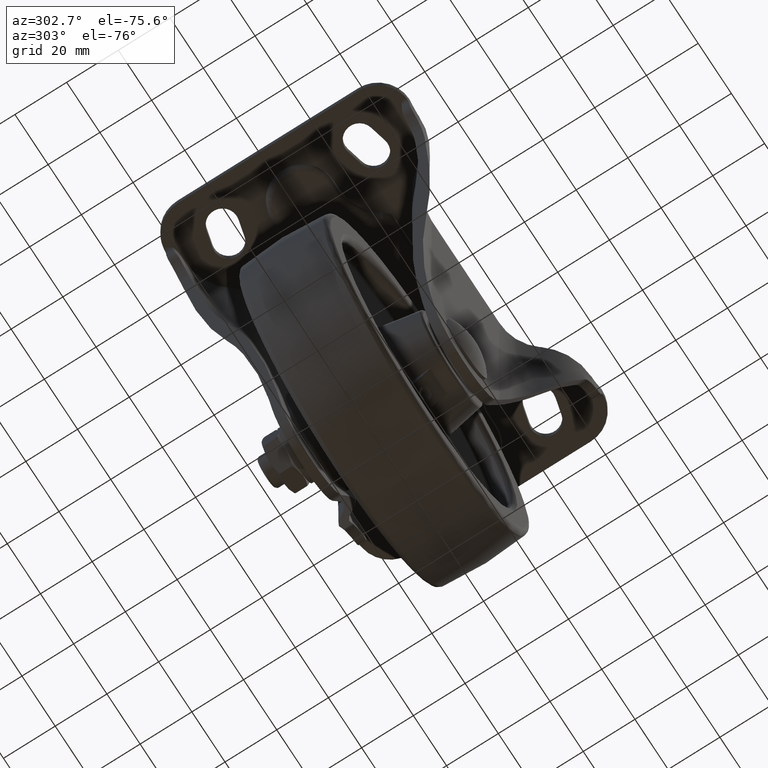
[diagram: clean part render]
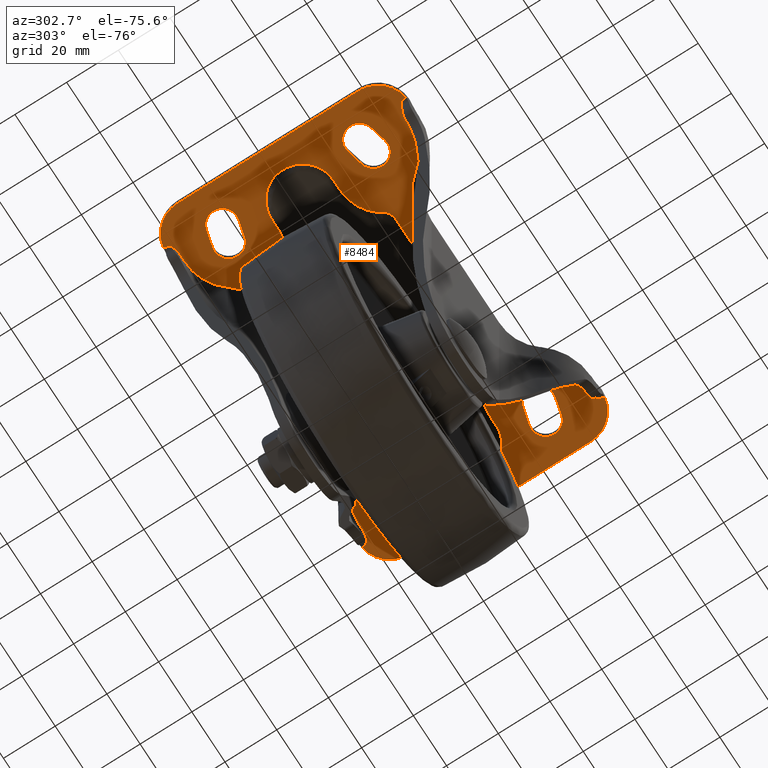
[diagram: same view with one face highlighted and labeled with its STEP entity id]
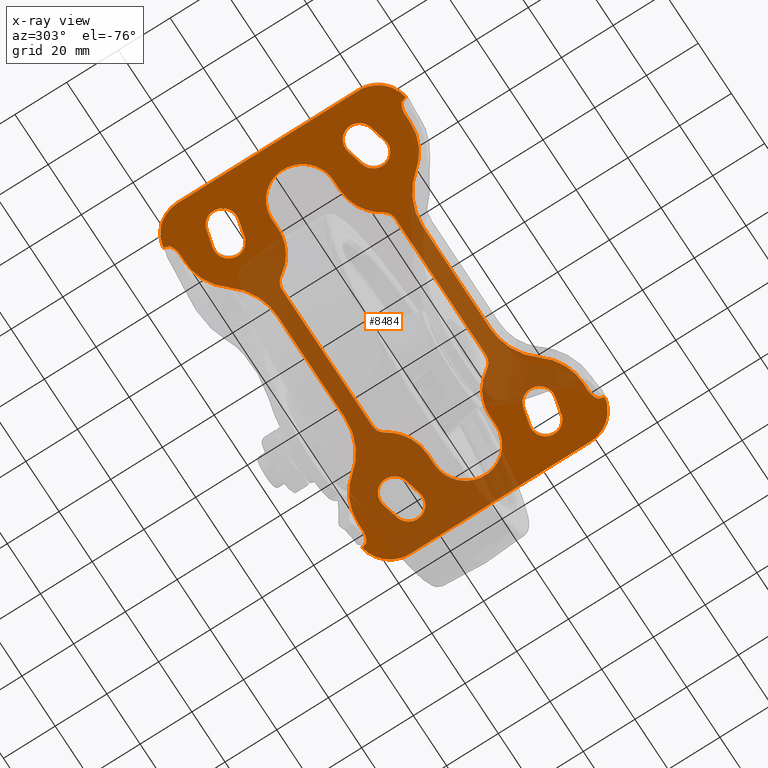
[diagram: x-ray of the same camera — body ghosted, the highlighted face saturated]
A machine part, auxiliary view. The second image highlights one B-rep face of the part: STEP entity #8484.
The next image is the same camera in x-ray: the body ghosted, the highlighted face saturated — about 44% of this face is hidden behind the body in this view.
In plain terms, the highlighted face is a freeform B-spline surface patch.
Its self-contained STEP definition (entity closure, byte-faithful):
#5304=CARTESIAN_POINT('',(-27.111454000000201,-22.0,102.0));
#5305=VERTEX_POINT('',#5304);
#5318=CARTESIAN_POINT('',(27.111453999999799,-22.0,102.0));
#5319=VERTEX_POINT('',#5318);
#5331=CARTESIAN_POINT('',(27.111453999999799,-22.0,102.0));
#5332=CARTESIAN_POINT('',(-27.111454000000201,-22.0,102.0));
#5333=QUASI_UNIFORM_CURVE('',1,(#5331,#5332),.UNSPECIFIED.,.F.,.U.);
#5334=EDGE_CURVE('',#5319,#5305,#5333,.T.);
#5356=CARTESIAN_POINT('',(31.370629280001449,-19.619047619047699,102.0));
#5357=VERTEX_POINT('',#5356);
#5369=CARTESIAN_POINT('',(31.370629280001449,-19.619047619047699,102.0));
#5370=CARTESIAN_POINT('',(29.906537777500791,-21.999998982590345,102.0));
#5371=CARTESIAN_POINT('',(27.111453999999799,-21.999999999999670,102.0));
#5379=(BOUNDED_CURVE()B_SPLINE_CURVE(2,(#5369,#5370,#5371),.UNSPECIFIED.,.F.,.U.)CURVE()GEOMETRIC_REPRESENTATION_ITEM()QUASI_UNIFORM_CURVE()RATIONAL_B_SPLINE_CURVE((1.0,0.872871649750764,1.0))REPRESENTATION_ITEM(''));
#5380=EDGE_CURVE('',#5357,#5319,#5379,.T.);
#5404=CARTESIAN_POINT('',(-31.370629280001399,-19.619047619047699,102.0));
#5405=VERTEX_POINT('',#5404);
#5419=CARTESIAN_POINT('',(-27.111454000000201,-22.0,102.0));
#5420=CARTESIAN_POINT('',(-29.906537777500880,-21.999998982590071,102.0));
#5421=CARTESIAN_POINT('',(-31.370629280001371,-19.619047619047681,102.0));
#5429=(BOUNDED_CURVE()B_SPLINE_CURVE(2,(#5419,#5420,#5421),.UNSPECIFIED.,.F.,.U.)CURVE()GEOMETRIC_REPRESENTATION_ITEM()QUASI_UNIFORM_CURVE()RATIONAL_B_SPLINE_CURVE((1.0,0.872871649750787,1.0))REPRESENTATION_ITEM(''));
#5430=EDGE_CURVE('',#5305,#5405,#5429,.T.);
#5452=CARTESIAN_POINT('',(44.999985667651003,-12.000000000003499,102.0));
#5453=VERTEX_POINT('',#5452);
#5464=CARTESIAN_POINT('',(31.370629280001360,-19.619047619047649,102.0));
#5465=CARTESIAN_POINT('',(36.055720538256566,-12.000005775957691,102.0));
#5466=CARTESIAN_POINT('',(44.999985667651003,-12.000000000003340,102.0));
#5474=(BOUNDED_CURVE()B_SPLINE_CURVE(2,(#5464,#5465,#5466),.UNSPECIFIED.,.F.,.U.)CURVE()GEOMETRIC_REPRESENTATION_ITEM()QUASI_UNIFORM_CURVE()RATIONAL_B_SPLINE_CURVE((1.0,0.872871718496115,1.0))REPRESENTATION_ITEM(''));
#5475=EDGE_CURVE('',#5357,#5453,#5474,.T.);
#5499=CARTESIAN_POINT('',(-44.999984999999747,-12.000000000000121,102.0));
#5500=VERTEX_POINT('',#5499);
#5514=CARTESIAN_POINT('',(-44.999984999999747,-12.000000000000121,102.0));
#5515=CARTESIAN_POINT('',(-36.055720308751518,-12.000006149185948,102.0));
#5516=CARTESIAN_POINT('',(-31.370629280001349,-19.619047619047659,102.0));
#5524=(BOUNDED_CURVE()B_SPLINE_CURVE(2,(#5514,#5515,#5516),.UNSPECIFIED.,.F.,.U.)CURVE()GEOMETRIC_REPRESENTATION_ITEM()QUASI_UNIFORM_CURVE()RATIONAL_B_SPLINE_CURVE((1.0,0.872871728676748,1.0))REPRESENTATION_ITEM(''));
#5525=EDGE_CURVE('',#5500,#5405,#5524,.T.);
#5544=CARTESIAN_POINT('',(48.999989999999997,-12.000000000000220,102.0));
#5545=VERTEX_POINT('',#5544);
#5557=CARTESIAN_POINT('',(48.999989999999997,-12.000000000000220,102.0));
#5558=CARTESIAN_POINT('',(44.999985667651003,-12.000000000003499,102.0));
#5559=QUASI_UNIFORM_CURVE('',1,(#5557,#5558),.UNSPECIFIED.,.F.,.U.);
#5560=EDGE_CURVE('',#5545,#5453,#5559,.T.);
#5581=CARTESIAN_POINT('',(-48.999988250738198,-11.999999999997380,102.0));
#5582=VERTEX_POINT('',#5581);
#5596=CARTESIAN_POINT('',(-44.999984999999747,-12.000000000000121,102.0));
#5597=CARTESIAN_POINT('',(-48.999988250738198,-11.999999999997380,102.0));
#5598=QUASI_UNIFORM_CURVE('',1,(#5596,#5597),.UNSPECIFIED.,.F.,.U.);
#5599=EDGE_CURVE('',#5500,#5582,#5598,.T.);
#5627=CARTESIAN_POINT('',(48.999999769911298,11.999999999999419,102.0));
#5628=VERTEX_POINT('',#5627);
#5641=CARTESIAN_POINT('',(48.999999769911298,11.999999999999419,102.0));
#5642=CARTESIAN_POINT('',(49.883574819334832,12.000149165317810,102.000000000000300));
#5643=CARTESIAN_POINT('',(51.552480042536907,11.814852113981679,101.999999999999600));
#5644=CARTESIAN_POINT('',(53.706869997564191,11.103101605465641,102.000000000000200));
#5645=CARTESIAN_POINT('',(55.573476125657152,10.105386122975840,101.999999999999600));
#5646=CARTESIAN_POINT('',(56.940125322865967,9.052236760049311,102.000000000000100));
#5647=CARTESIAN_POINT('',(58.210072261224333,7.750718180392997,101.999999999999800));
#5648=CARTESIAN_POINT('',(59.207951833685861,6.405250228899099,102.000000000000200));
#5649=CARTESIAN_POINT('',(60.069274298059653,4.745033772532293,101.999999999999800));
#5650=CARTESIAN_POINT('',(60.741930499202972,2.790239279855541,102.000000000000200));
#5651=CARTESIAN_POINT('',(61.068005975950008,0.591875118065421,102.0));
#5652=CARTESIAN_POINT('',(60.931985396890063,-1.869228699963068,101.999999999999010));
#5653=CARTESIAN_POINT('',(60.415883891061661,-3.876847131780324,102.000000000000500));
#5654=CARTESIAN_POINT('',(59.539001202123828,-5.855138138496876,102.0));
#5655=CARTESIAN_POINT('',(58.289379356106899,-7.750605158771084,102.0));
#5656=CARTESIAN_POINT('',(56.545775956018922,-9.431159014365122,102.0));
#5657=CARTESIAN_POINT('',(54.597901050020532,-10.681218947288521,102.000000000000100));
#5658=CARTESIAN_POINT('',(52.190353822945362,-11.696122656662350,101.999999999999500));
#5659=CARTESIAN_POINT('',(50.227240476759647,-12.000566316251090,102.000000000001410));
#5660=CARTESIAN_POINT('',(48.999989999999997,-12.000000000000220,102.0));
#5661=B_SPLINE_CURVE_WITH_KNOTS('',3,(#5641,#5642,#5643,#5644,#5645,#5646,#5647,#5648,#5649,#5650,#5651,#5652,#5653,#5654,#5655,#5656,#5657,#5658,#5659,#5660),.UNSPECIFIED.,.F.,.U.,(4,1,1,1,1,1,1,1,1,1,1,1,1,1,1,1,1,4),(0.000000325266527,2.650707487898934,5.006928073430288,6.774106226370876,8.983051368582942,10.161210523950420,12.222845440064070,13.989979135645640,15.757103438723600,18.407879628085698,20.616858584811411,23.120342780961820,24.592949202298900,27.096386629225961,29.894401199036221,31.808829275852101,34.017798531802327,37.699350619291209),.UNSPECIFIED.);
#5662=EDGE_CURVE('',#5628,#5545,#5661,.T.);
#5692=CARTESIAN_POINT('',(-48.999989999999997,12.0,102.0));
#5693=VERTEX_POINT('',#5692);
#5707=CARTESIAN_POINT('',(-48.999988250738198,-11.999999999997380,102.0));
#5708=CARTESIAN_POINT('',(-49.883564557680103,-12.000150780457080,101.999999999999900));
#5709=CARTESIAN_POINT('',(-51.552466955676813,-11.814849912727819,102.000000000000200));
#5710=CARTESIAN_POINT('',(-53.566357100548913,-11.149526348837281,101.999999999999700));
#5711=CARTESIAN_POINT('',(-55.273660397393563,-10.276946782853150,102.000000000000400));
#5712=CARTESIAN_POINT('',(-56.683503369582958,-9.283994640305826,102.000000000000400));
#5713=CARTESIAN_POINT('',(-58.233671296622951,-7.771604723765196,102.000000000000300));
#5714=CARTESIAN_POINT('',(-59.427968487944163,-6.075733322273231,101.999999999999300));
#5715=CARTESIAN_POINT('',(-60.391350295838777,-3.972477380922791,102.000000000001510));
#5716=CARTESIAN_POINT('',(-60.858205202391019,-2.156032826347218,101.999999999998000));
#5717=CARTESIAN_POINT('',(-61.043430448618679,-0.148861077360590,102.000000000002300));
#5718=CARTESIAN_POINT('',(-60.940069865936323,1.721543940778727,102.000000000000700));
#5719=CARTESIAN_POINT('',(-60.439123597907312,3.830729009009837,101.999999999998910));
#5720=CARTESIAN_POINT('',(-59.473984413559812,6.045022643404922,102.000000000000200));
#5721=CARTESIAN_POINT('',(-57.938538906523078,8.169520158163154,102.000000000000200));
#5722=CARTESIAN_POINT('',(-56.105952438831778,9.749978827929841,101.999999999999200));
#5723=CARTESIAN_POINT('',(-54.030591793021749,10.976785142130380,102.000000000000400));
#5724=CARTESIAN_POINT('',(-51.748875536431463,11.793205537842971,102.000000000000100));
#5725=CARTESIAN_POINT('',(-49.883544077709800,12.000126623289511,101.999999999999300));
#5726=CARTESIAN_POINT('',(-48.999989999999997,12.0,102.0));
#5727=B_SPLINE_CURVE_WITH_KNOTS('',3,(#5707,#5708,#5709,#5710,#5711,#5712,#5713,#5714,#5715,#5716,#5717,#5718,#5719,#5720,#5721,#5722,#5723,#5724,#5725,#5726),.UNSPECIFIED.,.F.,.U.,(4,1,1,1,1,1,1,1,1,1,1,1,1,1,1,1,1,4),(0.000000325303574,2.650708297834292,5.006929603364505,6.332317481389559,8.394021026334414,10.161213628860690,12.811812841451509,14.579012661927200,17.082497623122880,18.407885252799769,20.616864884515060,22.678579306204860,24.887549666160481,27.832713822917409,30.483464882731560,32.103373078457167,35.048676697600193,37.699362138680847),.UNSPECIFIED.);
#5728=EDGE_CURVE('',#5582,#5693,#5727,.T.);
#5747=CARTESIAN_POINT('',(44.999984999999803,12.000000000000220,102.0));
#5748=VERTEX_POINT('',#5747);
#5760=CARTESIAN_POINT('',(44.999984999999803,12.000000000000220,102.0));
#5761=CARTESIAN_POINT('',(48.999999769911298,11.999999999999419,102.0));
#5762=QUASI_UNIFORM_CURVE('',1,(#5760,#5761),.UNSPECIFIED.,.F.,.U.);
#5763=EDGE_CURVE('',#5748,#5628,#5762,.T.);
#5784=CARTESIAN_POINT('',(-44.999985667650947,12.000000000003419,102.0));
#5785=VERTEX_POINT('',#5784);
#5799=CARTESIAN_POINT('',(-48.999989999999997,12.0,102.0));
#5800=CARTESIAN_POINT('',(-44.999985667650947,12.000000000003419,102.0));
#5801=QUASI_UNIFORM_CURVE('',1,(#5799,#5800),.UNSPECIFIED.,.F.,.U.);
#5802=EDGE_CURVE('',#5693,#5785,#5801,.T.);
#5824=CARTESIAN_POINT('',(31.370629280001449,19.619047619047699,102.0));
#5825=VERTEX_POINT('',#5824);
#5837=CARTESIAN_POINT('',(44.999984999999803,12.000000000000220,102.0));
#5838=CARTESIAN_POINT('',(36.055720308751560,12.000006149185959,102.0));
#5839=CARTESIAN_POINT('',(31.370629280001410,19.619047619047670,102.0));
#5847=(BOUNDED_CURVE()B_SPLINE_CURVE(2,(#5837,#5838,#5839),.UNSPECIFIED.,.F.,.U.)CURVE()GEOMETRIC_REPRESENTATION_ITEM()QUASI_UNIFORM_CURVE()RATIONAL_B_SPLINE_CURVE((1.0,0.872871728676748,1.0))REPRESENTATION_ITEM(''));
#5848=EDGE_CURVE('',#5748,#5825,#5847,.T.);
#5872=CARTESIAN_POINT('',(-31.370629280001399,19.619047619047699,102.0));
#5873=VERTEX_POINT('',#5872);
#5887=CARTESIAN_POINT('',(-31.370629280001349,19.619047619047659,102.0));
#5888=CARTESIAN_POINT('',(-36.055720538256523,12.000005775957726,102.0));
#5889=CARTESIAN_POINT('',(-44.999985667650947,12.000000000003340,102.0));
#5897=(BOUNDED_CURVE()B_SPLINE_CURVE(2,(#5887,#5888,#5889),.UNSPECIFIED.,.F.,.U.)CURVE()GEOMETRIC_REPRESENTATION_ITEM()QUASI_UNIFORM_CURVE()RATIONAL_B_SPLINE_CURVE((1.0,0.872871718496115,1.0))REPRESENTATION_ITEM(''));
#5898=EDGE_CURVE('',#5873,#5785,#5897,.T.);
#5920=CARTESIAN_POINT('',(27.111452180001901,22.0,102.0));
#5921=VERTEX_POINT('',#5920);
#5933=CARTESIAN_POINT('',(27.111452180001901,22.0,102.0));
#5934=CARTESIAN_POINT('',(29.906537151876570,22.000000000000007,102.0));
#5935=CARTESIAN_POINT('',(31.370629280001449,19.619047619047699,102.0));
#5943=(BOUNDED_CURVE()B_SPLINE_CURVE(2,(#5933,#5934,#5935),.UNSPECIFIED.,.F.,.U.)CURVE()GEOMETRIC_REPRESENTATION_ITEM()QUASI_UNIFORM_CURVE()RATIONAL_B_SPLINE_CURVE((1.0,0.872871560943974,1.0))REPRESENTATION_ITEM(''));
#5944=EDGE_CURVE('',#5921,#5825,#5943,.T.);
#5968=CARTESIAN_POINT('',(-27.111454000000201,22.0,102.0));
#5969=VERTEX_POINT('',#5968);
#5983=CARTESIAN_POINT('',(-31.370629280001371,19.619047619047670,102.0));
#5984=CARTESIAN_POINT('',(-29.906537777500883,21.999998982590075,102.0));
#5985=CARTESIAN_POINT('',(-27.111454000000201,21.999999999999670,102.0));
#5993=(BOUNDED_CURVE()B_SPLINE_CURVE(2,(#5983,#5984,#5985),.UNSPECIFIED.,.F.,.U.)CURVE()GEOMETRIC_REPRESENTATION_ITEM()QUASI_UNIFORM_CURVE()RATIONAL_B_SPLINE_CURVE((1.0,0.872871649750787,1.0))REPRESENTATION_ITEM(''));
#5994=EDGE_CURVE('',#5873,#5969,#5993,.T.);
#6016=CARTESIAN_POINT('',(-27.111454000000201,22.0,102.0));
#6017=CARTESIAN_POINT('',(27.111452180001901,22.0,102.0));
#6018=QUASI_UNIFORM_CURVE('',1,(#6016,#6017),.UNSPECIFIED.,.F.,.U.);
#6019=EDGE_CURVE('',#5969,#5921,#6018,.T.);
#6923=CARTESIAN_POINT('',(-59.222653478872203,-44.751545144357443,102.0));
#6924=VERTEX_POINT('',#6923);
#6950=CARTESIAN_POINT('',(-54.952017975717887,-43.500000000000000,102.0));
#6951=VERTEX_POINT('',#6950);
#6952=CARTESIAN_POINT('',(-54.952017975717887,-43.500000000000000,102.0));
#6953=CARTESIAN_POINT('',(-57.272807229094042,-43.492889943871475,102.0));
#6954=CARTESIAN_POINT('',(-59.222653478872182,-44.751545144357472,102.0));
#6962=(BOUNDED_CURVE()B_SPLINE_CURVE(2,(#6952,#6953,#6954),.UNSPECIFIED.,.F.,.U.)CURVE()GEOMETRIC_REPRESENTATION_ITEM()QUASI_UNIFORM_CURVE()RATIONAL_B_SPLINE_CURVE((1.0,0.958774151870259,1.0))REPRESENTATION_ITEM(''));
#6963=EDGE_CURVE('',#6951,#6924,#6962,.T.);
#7038=CARTESIAN_POINT('',(54.952017975717887,-43.500000000000000,102.0));
#7039=VERTEX_POINT('',#7038);
#7045=CARTESIAN_POINT('',(59.222653478872203,-44.751545144357443,102.0));
#7046=VERTEX_POINT('',#7045);
#7047=CARTESIAN_POINT('',(59.222653478872182,-44.751545144357472,102.0));
#7048=CARTESIAN_POINT('',(57.272807229094042,-43.492889943871475,102.0));
#7049=CARTESIAN_POINT('',(54.952017975717887,-43.500000000000298,102.0));
#7057=(BOUNDED_CURVE()B_SPLINE_CURVE(2,(#7047,#7048,#7049),.UNSPECIFIED.,.F.,.U.)CURVE()GEOMETRIC_REPRESENTATION_ITEM()QUASI_UNIFORM_CURVE()RATIONAL_B_SPLINE_CURVE((1.0,0.958774151870259,1.0))REPRESENTATION_ITEM(''));
#7058=EDGE_CURVE('',#7046,#7039,#7057,.T.);
#7108=CARTESIAN_POINT('',(52.0,-43.500000000000000,102.0));
#7109=VERTEX_POINT('',#7108);
#7115=CARTESIAN_POINT('',(54.952017975717887,-43.500000000000000,102.0));
#7116=CARTESIAN_POINT('',(52.0,-43.500000000000000,102.0));
#7117=QUASI_UNIFORM_CURVE('',1,(#7115,#7116),.UNSPECIFIED.,.F.,.U.);
#7118=EDGE_CURVE('',#7039,#7109,#7117,.T.);
#7173=CARTESIAN_POINT('',(37.376290127769799,-36.331249999999997,102.0));
#7174=VERTEX_POINT('',#7173);
#7180=CARTESIAN_POINT('',(37.376290127769799,-36.331249999999997,102.0));
#7181=CARTESIAN_POINT('',(42.931032348929442,-43.500000968326354,102.0));
#7182=CARTESIAN_POINT('',(52.0,-43.500000000000000,102.0));
#7190=(BOUNDED_CURVE()B_SPLINE_CURVE(2,(#7180,#7181,#7182),.UNSPECIFIED.,.F.,.U.)CURVE()GEOMETRIC_REPRESENTATION_ITEM()QUASI_UNIFORM_CURVE()RATIONAL_B_SPLINE_CURVE((1.0,0.897914220656982,1.0))REPRESENTATION_ITEM(''));
#7191=EDGE_CURVE('',#7174,#7109,#7190,.T.);
#7225=CARTESIAN_POINT('',(20.381172492475301,-28.0,102.0));
#7226=VERTEX_POINT('',#7225);
#7232=CARTESIAN_POINT('',(37.376290127769842,-36.331249999999983,102.0));
#7233=CARTESIAN_POINT('',(30.920780328316866,-28.000000000000004,102.0));
#7234=CARTESIAN_POINT('',(20.381172492475301,-28.0,102.0));
#7242=(BOUNDED_CURVE()B_SPLINE_CURVE(2,(#7232,#7233,#7234),.UNSPECIFIED.,.F.,.U.)CURVE()GEOMETRIC_REPRESENTATION_ITEM()QUASI_UNIFORM_CURVE()RATIONAL_B_SPLINE_CURVE((1.0,0.897914249803399,1.0))REPRESENTATION_ITEM(''));
#7243=EDGE_CURVE('',#7174,#7226,#7242,.T.);
#7291=CARTESIAN_POINT('',(-20.381176492475301,-28.0,102.0));
#7292=VERTEX_POINT('',#7291);
#7298=CARTESIAN_POINT('',(20.381172492475301,-28.0,102.0));
#7299=CARTESIAN_POINT('',(-20.381176492475301,-28.0,102.0));
#7300=QUASI_UNIFORM_CURVE('',1,(#7298,#7299),.UNSPECIFIED.,.F.,.U.);
#7301=EDGE_CURVE('',#7226,#7292,#7300,.T.);
#7342=CARTESIAN_POINT('',(-37.376294127769853,-36.331249999999997,102.0));
#7343=VERTEX_POINT('',#7342);
#7349=CARTESIAN_POINT('',(-20.381176492475301,-28.0,102.0));
#7350=CARTESIAN_POINT('',(-30.920784328316884,-28.000000000000007,102.0));
#7351=CARTESIAN_POINT('',(-37.376294127769853,-36.331249999999997,102.0));
#7359=(BOUNDED_CURVE()B_SPLINE_CURVE(2,(#7349,#7350,#7351),.UNSPECIFIED.,.F.,.U.)CURVE()GEOMETRIC_REPRESENTATION_ITEM()QUASI_UNIFORM_CURVE()RATIONAL_B_SPLINE_CURVE((1.0,0.897914249803399,1.0))REPRESENTATION_ITEM(''));
#7360=EDGE_CURVE('',#7292,#7343,#7359,.T.);
#7415=CARTESIAN_POINT('',(-52.0,-43.500000000000000,102.0));
#7416=VERTEX_POINT('',#7415);
#7422=CARTESIAN_POINT('',(-52.0,-43.500000000000000,102.0));
#7423=CARTESIAN_POINT('',(-42.931035117996792,-43.500000000000007,102.0));
#7424=CARTESIAN_POINT('',(-37.376294127769818,-36.331250000000033,102.0));
#7432=(BOUNDED_CURVE()B_SPLINE_CURVE(2,(#7422,#7423,#7424),.UNSPECIFIED.,.F.,.U.)CURVE()GEOMETRIC_REPRESENTATION_ITEM()QUASI_UNIFORM_CURVE()RATIONAL_B_SPLINE_CURVE((1.0,0.897914249803399,1.0))REPRESENTATION_ITEM(''));
#7433=EDGE_CURVE('',#7416,#7343,#7432,.T.);
#7457=CARTESIAN_POINT('',(-52.0,-43.500000000000000,102.0));
#7458=CARTESIAN_POINT('',(-54.952017975717887,-43.500000000000000,102.0));
#7459=QUASI_UNIFORM_CURVE('',1,(#7457,#7458),.UNSPECIFIED.,.F.,.U.);
#7460=EDGE_CURVE('',#7416,#6951,#7459,.T.);
#7491=CARTESIAN_POINT('',(-54.952017975717887,43.500000000000000,102.0));
#7492=VERTEX_POINT('',#7491);
#7498=CARTESIAN_POINT('',(-59.222653478872203,44.751545144357493,102.0));
#7499=VERTEX_POINT('',#7498);
#7500=CARTESIAN_POINT('',(-59.222653478872203,44.751545144357493,102.0));
#7501=CARTESIAN_POINT('',(-57.272807229094049,43.492889943871482,102.0));
#7502=CARTESIAN_POINT('',(-54.952017975717887,43.500000000000298,102.0));
#7510=(BOUNDED_CURVE()B_SPLINE_CURVE(2,(#7500,#7501,#7502),.UNSPECIFIED.,.F.,.U.)CURVE()GEOMETRIC_REPRESENTATION_ITEM()QUASI_UNIFORM_CURVE()RATIONAL_B_SPLINE_CURVE((1.0,0.958774151870258,1.0))REPRESENTATION_ITEM(''));
#7511=EDGE_CURVE('',#7499,#7492,#7510,.T.);
#7600=CARTESIAN_POINT('',(-52.0,43.500000000000000,102.0));
#7601=VERTEX_POINT('',#7600);
#7607=CARTESIAN_POINT('',(-52.0,43.500000000000000,102.0));
#7608=CARTESIAN_POINT('',(-54.952017975717887,43.500000000000000,102.0));
#7609=QUASI_UNIFORM_CURVE('',1,(#7607,#7608),.UNSPECIFIED.,.F.,.U.);
#7610=EDGE_CURVE('',#7601,#7492,#7609,.T.);
#7663=CARTESIAN_POINT('',(-37.376294127769853,36.331249999999997,102.0));
#7664=VERTEX_POINT('',#7663);
#7670=CARTESIAN_POINT('',(-37.376294127769818,36.331250000000033,102.0));
#7671=CARTESIAN_POINT('',(-42.931035117996792,43.500000000000007,102.0));
#7672=CARTESIAN_POINT('',(-52.0,43.500000000000000,102.0));
#7680=(BOUNDED_CURVE()B_SPLINE_CURVE(2,(#7670,#7671,#7672),.UNSPECIFIED.,.F.,.U.)CURVE()GEOMETRIC_REPRESENTATION_ITEM()QUASI_UNIFORM_CURVE()RATIONAL_B_SPLINE_CURVE((1.0,0.897914249803399,1.0))REPRESENTATION_ITEM(''));
#7681=EDGE_CURVE('',#7664,#7601,#7680,.T.);
#7716=CARTESIAN_POINT('',(-20.381176492475301,28.0,102.0));
#7717=VERTEX_POINT('',#7716);
#7723=CARTESIAN_POINT('',(-37.376294127769853,36.331249999999997,102.0));
#7724=CARTESIAN_POINT('',(-30.920784328316895,28.000000000000004,102.0));
#7725=CARTESIAN_POINT('',(-20.381176492475301,28.0,102.0));
#7733=(BOUNDED_CURVE()B_SPLINE_CURVE(2,(#7723,#7724,#7725),.UNSPECIFIED.,.F.,.U.)CURVE()GEOMETRIC_REPRESENTATION_ITEM()QUASI_UNIFORM_CURVE()RATIONAL_B_SPLINE_CURVE((1.0,0.897914249803398,1.0))REPRESENTATION_ITEM(''));
#7734=EDGE_CURVE('',#7664,#7717,#7733,.T.);
#7777=CARTESIAN_POINT('',(20.381172492475301,28.0,102.0));
#7778=VERTEX_POINT('',#7777);
#7784=CARTESIAN_POINT('',(20.381172492475301,28.0,102.0));
#7785=CARTESIAN_POINT('',(-20.381176492475301,28.0,102.0));
#7786=QUASI_UNIFORM_CURVE('',1,(#7784,#7785),.UNSPECIFIED.,.F.,.U.);
#7787=EDGE_CURVE('',#7778,#7717,#7786,.T.);
#7833=CARTESIAN_POINT('',(37.376290127769799,36.331249999999997,102.0));
#7834=VERTEX_POINT('',#7833);
#7840=CARTESIAN_POINT('',(20.381172492475301,28.0,102.0));
#7841=CARTESIAN_POINT('',(30.920780328316862,28.0,102.0));
#7842=CARTESIAN_POINT('',(37.376290127769828,36.331249999999983,102.0));
#7850=(BOUNDED_CURVE()B_SPLINE_CURVE(2,(#7840,#7841,#7842),.UNSPECIFIED.,.F.,.U.)CURVE()GEOMETRIC_REPRESENTATION_ITEM()QUASI_UNIFORM_CURVE()RATIONAL_B_SPLINE_CURVE((1.0,0.897914249803399,1.0))REPRESENTATION_ITEM(''));
#7851=EDGE_CURVE('',#7778,#7834,#7850,.T.);
#7905=CARTESIAN_POINT('',(52.0,43.500000000000000,102.0));
#7906=VERTEX_POINT('',#7905);
#7912=CARTESIAN_POINT('',(52.0,43.500000000000000,102.0));
#7913=CARTESIAN_POINT('',(42.931032348929449,43.500000968326354,102.0));
#7914=CARTESIAN_POINT('',(37.376290127769799,36.331249999999997,102.0));
#7922=(BOUNDED_CURVE()B_SPLINE_CURVE(2,(#7912,#7913,#7914),.UNSPECIFIED.,.F.,.U.)CURVE()GEOMETRIC_REPRESENTATION_ITEM()QUASI_UNIFORM_CURVE()RATIONAL_B_SPLINE_CURVE((1.0,0.897914220656982,1.0))REPRESENTATION_ITEM(''));
#7923=EDGE_CURVE('',#7906,#7834,#7922,.T.);
#7950=CARTESIAN_POINT('',(54.952017975717887,43.500000000000000,102.0));
#7951=VERTEX_POINT('',#7950);
#7957=CARTESIAN_POINT('',(54.952017975717887,43.500000000000000,102.0));
#7958=CARTESIAN_POINT('',(52.0,43.500000000000000,102.0));
#7959=QUASI_UNIFORM_CURVE('',1,(#7957,#7958),.UNSPECIFIED.,.F.,.U.);
#7960=EDGE_CURVE('',#7951,#7906,#7959,.T.);
#7980=CARTESIAN_POINT('',(59.222653478872203,44.751545144357443,102.0));
#7981=VERTEX_POINT('',#7980);
#8007=CARTESIAN_POINT('',(54.952017975717887,43.500000000000000,102.0));
#8008=CARTESIAN_POINT('',(57.272807229094020,43.492889943871475,102.0));
#8009=CARTESIAN_POINT('',(59.222653478872182,44.751545144357472,102.0));
#8017=(BOUNDED_CURVE()B_SPLINE_CURVE(2,(#8007,#8008,#8009),.UNSPECIFIED.,.F.,.U.)CURVE()GEOMETRIC_REPRESENTATION_ITEM()QUASI_UNIFORM_CURVE()RATIONAL_B_SPLINE_CURVE((1.0,0.958774151870258,1.0))REPRESENTATION_ITEM(''));
#8018=EDGE_CURVE('',#7951,#7981,#8017,.T.);
#8060=CARTESIAN_POINT('',(-76.992999528852849,-51.520752421843333,102.0));
#8061=CARTESIAN_POINT('',(76.992999283945451,-51.520752421843333,102.0));
#8062=CARTESIAN_POINT('',(-76.992999528852849,51.520754934606607,102.0));
#8063=CARTESIAN_POINT('',(76.992999283945451,51.520754934606607,102.0));
#8064=B_SPLINE_SURFACE_WITH_KNOTS('',1,1,((#8060,#8062),(#8061,#8063)),.UNSPECIFIED.,.F.,.F.,.U.,(2,2),(2,2),(0.0,153.985998812798300),(0.0,103.041507356449900),.UNSPECIFIED.);
#8065=ORIENTED_EDGE('',*,*,#8018,.T.);
#8066=CARTESIAN_POINT('',(59.583883741947567,45.796425322225303,102.0));
#8067=VERTEX_POINT('',#8066);
#8068=CARTESIAN_POINT('',(59.222653478872189,44.751545144357458,102.0));
#8069=CARTESIAN_POINT('',(59.343063566563977,45.099838536980073,102.0));
#8070=CARTESIAN_POINT('',(59.463473654255793,45.448131929602702,102.0));
#8071=CARTESIAN_POINT('',(59.583883741947588,45.796425322225311,102.0));
#8072=B_SPLINE_CURVE_WITH_KNOTS('',3,(#8068,#8069,#8070,#8071),.UNSPECIFIED.,.F.,.U.,(4,4),(0.305669119718051,0.395976685486895),.UNSPECIFIED.);
#8073=EDGE_CURVE('',#7981,#8067,#8072,.T.);
#8074=ORIENTED_EDGE('',*,*,#8073,.T.);
#8075=CARTESIAN_POINT('',(59.945114005023001,46.841305500093100,102.0));
#8076=VERTEX_POINT('',#8075);
#8077=CARTESIAN_POINT('',(59.583883741947588,45.796425322225311,102.0));
#8078=CARTESIAN_POINT('',(59.704293829639383,46.144718714847933,102.0));
#8079=CARTESIAN_POINT('',(59.824703917331178,46.493012107470527,102.0));
#8080=CARTESIAN_POINT('',(59.945114005022972,46.841305500093128,102.0));
#8081=B_SPLINE_CURVE_WITH_KNOTS('',3,(#8077,#8078,#8079,#8080),.UNSPECIFIED.,.F.,.U.,(4,4),(0.395976685486895,0.486284251255739),.UNSPECIFIED.);
#8082=EDGE_CURVE('',#8067,#8076,#8081,.T.);
#8083=ORIENTED_EDGE('',*,*,#8082,.T.);
#8084=CARTESIAN_POINT('',(69.999995999999996,35.0,102.0));
#8085=VERTEX_POINT('',#8084);
#8086=CARTESIAN_POINT('',(59.945114005023008,46.841305500093107,102.0));
#8087=CARTESIAN_POINT('',(69.999995999999996,45.189635250840809,102.0));
#8088=CARTESIAN_POINT('',(69.999995999999996,35.0,102.0));
#8096=(BOUNDED_CURVE()B_SPLINE_CURVE(2,(#8086,#8087,#8088),.UNSPECIFIED.,.F.,.U.)CURVE()GEOMETRIC_REPRESENTATION_ITEM()QUASI_UNIFORM_CURVE()RATIONAL_B_SPLINE_CURVE((1.0,0.762264116656835,1.0))REPRESENTATION_ITEM(''));
#8097=EDGE_CURVE('',#8076,#8085,#8096,.T.);
#8098=ORIENTED_EDGE('',*,*,#8097,.T.);
#8099=CARTESIAN_POINT('',(69.999996000000095,-35.0,102.0));
#8100=VERTEX_POINT('',#8099);
#8101=CARTESIAN_POINT('',(69.999995999999996,35.0,102.0));
#8102=CARTESIAN_POINT('',(69.999996000000095,-35.0,102.0));
#8103=QUASI_UNIFORM_CURVE('',1,(#8101,#8102),.UNSPECIFIED.,.F.,.U.);
#8104=EDGE_CURVE('',#8085,#8100,#8103,.T.);
#8105=ORIENTED_EDGE('',*,*,#8104,.T.);
#8106=CARTESIAN_POINT('',(59.945114005023001,-46.841305500093299,102.0));
#8107=VERTEX_POINT('',#8106);
#8108=CARTESIAN_POINT('',(69.999995999999996,-35.0,102.0));
#8109=CARTESIAN_POINT('',(69.999996000000010,-45.189635250840844,102.0));
#8110=CARTESIAN_POINT('',(59.945114005022972,-46.841305500093121,102.0));
#8118=(BOUNDED_CURVE()B_SPLINE_CURVE(2,(#8108,#8109,#8110),.UNSPECIFIED.,.F.,.U.)CURVE()GEOMETRIC_REPRESENTATION_ITEM()QUASI_UNIFORM_CURVE()RATIONAL_B_SPLINE_CURVE((1.0,0.762264116656834,1.0))REPRESENTATION_ITEM(''));
#8119=EDGE_CURVE('',#8100,#8107,#8118,.T.);
#8120=ORIENTED_EDGE('',*,*,#8119,.T.);
#8121=CARTESIAN_POINT('',(59.583883741947432,-45.796425322224962,102.0));
#8122=VERTEX_POINT('',#8121);
#8123=CARTESIAN_POINT('',(59.945114005023008,-46.841305500093277,102.0));
#8124=CARTESIAN_POINT('',(59.824703917331163,-46.493012107470527,102.0));
#8125=CARTESIAN_POINT('',(59.704293829639298,-46.144718714847762,102.0));
#8126=CARTESIAN_POINT('',(59.583883741947439,-45.796425322224962,102.0));
#8127=B_SPLINE_CURVE_WITH_KNOTS('',3,(#8123,#8124,#8125,#8126),.UNSPECIFIED.,.F.,.U.,(4,4),(0.513715748744249,0.604023314513141),.UNSPECIFIED.);
#8128=EDGE_CURVE('',#8107,#8122,#8127,.T.);
#8129=ORIENTED_EDGE('',*,*,#8128,.T.);
#8130=CARTESIAN_POINT('',(59.583883741947439,-45.796425322224962,102.0));
#8131=CARTESIAN_POINT('',(59.463473654255573,-45.448131929602162,102.0));
#8132=CARTESIAN_POINT('',(59.343063566563707,-45.099838536979348,102.0));
#8133=CARTESIAN_POINT('',(59.222653478871862,-44.751545144356520,102.0));
#8134=B_SPLINE_CURVE_WITH_KNOTS('',3,(#8130,#8131,#8132,#8133),.UNSPECIFIED.,.F.,.U.,(4,4),(0.604023314513141,0.694330880282034),.UNSPECIFIED.);
#8135=EDGE_CURVE('',#8122,#7046,#8134,.T.);
#8136=ORIENTED_EDGE('',*,*,#8135,.T.);
#8137=ORIENTED_EDGE('',*,*,#7058,.T.);
#8138=ORIENTED_EDGE('',*,*,#7118,.T.);
#8139=ORIENTED_EDGE('',*,*,#7191,.F.);
#8140=ORIENTED_EDGE('',*,*,#7243,.T.);
#8141=ORIENTED_EDGE('',*,*,#7301,.T.);
#8142=ORIENTED_EDGE('',*,*,#7360,.T.);
#8143=ORIENTED_EDGE('',*,*,#7433,.F.);
#8144=ORIENTED_EDGE('',*,*,#7460,.T.);
#8145=ORIENTED_EDGE('',*,*,#6963,.T.);
#8146=CARTESIAN_POINT('',(-59.583883849421888,-45.796425633101258,102.0));
#8147=VERTEX_POINT('',#8146);
#8148=CARTESIAN_POINT('',(-59.222653478872203,-44.751545144357443,102.0));
#8149=CARTESIAN_POINT('',(-59.343063602388511,-45.099838640604723,102.0));
#8150=CARTESIAN_POINT('',(-59.463473725905203,-45.448132136853012,102.0));
#8151=CARTESIAN_POINT('',(-59.583883849421888,-45.796425633101258,102.0));
#8152=B_SPLINE_CURVE_WITH_KNOTS('',3,(#8148,#8149,#8150,#8151),.UNSPECIFIED.,.F.,.U.,(4,4),(0.513715695007014,0.604023287644528),.UNSPECIFIED.);
#8153=EDGE_CURVE('',#6924,#8147,#8152,.T.);
#8154=ORIENTED_EDGE('',*,*,#8153,.T.);
#8155=CARTESIAN_POINT('',(-59.945114219971913,-46.841306121846003,102.0));
#8156=VERTEX_POINT('',#8155);
#8157=CARTESIAN_POINT('',(-59.583883849421888,-45.796425633101258,102.0));
#8158=CARTESIAN_POINT('',(-59.704293972938579,-46.144719129349518,102.0));
#8159=CARTESIAN_POINT('',(-59.824704096455257,-46.493012625597757,102.0));
#8160=CARTESIAN_POINT('',(-59.945114219971941,-46.841306121845982,102.0));
#8161=B_SPLINE_CURVE_WITH_KNOTS('',3,(#8157,#8158,#8159,#8160),.UNSPECIFIED.,.F.,.U.,(4,4),(0.604023287644528,0.694330880282041),.UNSPECIFIED.);
#8162=EDGE_CURVE('',#8147,#8156,#8161,.T.);
#8163=ORIENTED_EDGE('',*,*,#8162,.T.);
#8164=CARTESIAN_POINT('',(-70.0,-35.0,102.0));
#8165=VERTEX_POINT('',#8164);
#8166=CARTESIAN_POINT('',(-59.945114219971877,-46.841306121845832,102.0));
#8167=CARTESIAN_POINT('',(-70.0,-45.189638551589887,102.0));
#8168=CARTESIAN_POINT('',(-70.0,-35.0,102.0));
#8176=(BOUNDED_CURVE()B_SPLINE_CURVE(2,(#8166,#8167,#8168),.UNSPECIFIED.,.F.,.U.)CURVE()GEOMETRIC_REPRESENTATION_ITEM()QUASI_UNIFORM_CURVE()RATIONAL_B_SPLINE_CURVE((1.0,0.762264013208128,1.0))REPRESENTATION_ITEM(''));
#8177=EDGE_CURVE('',#8156,#8165,#8176,.T.);
#8178=ORIENTED_EDGE('',*,*,#8177,.T.);
#8179=CARTESIAN_POINT('',(-70.0,35.0,102.0));
#8180=VERTEX_POINT('',#8179);
#8181=CARTESIAN_POINT('',(-70.0,-35.0,102.0));
#8182=CARTESIAN_POINT('',(-70.0,35.0,102.0));
#8183=QUASI_UNIFORM_CURVE('',1,(#8181,#8182),.UNSPECIFIED.,.F.,.U.);
#8184=EDGE_CURVE('',#8165,#8180,#8183,.T.);
#8185=ORIENTED_EDGE('',*,*,#8184,.T.);
#8186=CARTESIAN_POINT('',(-59.945114219971913,46.841306121845797,102.0));
#8187=VERTEX_POINT('',#8186);
#8188=CARTESIAN_POINT('',(-70.0,35.0,102.0));
#8189=CARTESIAN_POINT('',(-70.0,45.189638551589873,102.000000000000010));
#8190=CARTESIAN_POINT('',(-59.945114219971913,46.841306121845818,102.0));
#8198=(BOUNDED_CURVE()B_SPLINE_CURVE(2,(#8188,#8189,#8190),.UNSPECIFIED.,.F.,.U.)CURVE()GEOMETRIC_REPRESENTATION_ITEM()QUASI_UNIFORM_CURVE()RATIONAL_B_SPLINE_CURVE((1.0,0.762264013208129,1.0))REPRESENTATION_ITEM(''));
#8199=EDGE_CURVE('',#8180,#8187,#8198,.T.);
#8200=ORIENTED_EDGE('',*,*,#8199,.T.);
#8201=CARTESIAN_POINT('',(-59.583883849421987,45.796425633101450,102.0));
#8202=VERTEX_POINT('',#8201);
#8203=CARTESIAN_POINT('',(-59.945114219971913,46.841306121845832,102.0));
#8204=CARTESIAN_POINT('',(-59.824704096455278,46.493012625597707,102.0));
#8205=CARTESIAN_POINT('',(-59.704293972938643,46.144719129349582,102.0));
#8206=CARTESIAN_POINT('',(-59.583883849421987,45.796425633101450,102.0));
#8207=B_SPLINE_CURVE_WITH_KNOTS('',3,(#8203,#8204,#8205,#8206),.UNSPECIFIED.,.F.,.U.,(4,4),(0.305669119718016,0.395976712355495),.UNSPECIFIED.);
#8208=EDGE_CURVE('',#8187,#8202,#8207,.T.);
#8209=ORIENTED_EDGE('',*,*,#8208,.T.);
#8210=CARTESIAN_POINT('',(-59.583883849421987,45.796425633101450,102.0));
#8211=CARTESIAN_POINT('',(-59.463473725905352,45.448132136853317,102.0));
#8212=CARTESIAN_POINT('',(-59.343063602388703,45.099838640605192,102.0));
#8213=CARTESIAN_POINT('',(-59.222653478872047,44.751545144357053,102.0));
#8214=B_SPLINE_CURVE_WITH_KNOTS('',3,(#8210,#8211,#8212,#8213),.UNSPECIFIED.,.F.,.U.,(4,4),(0.395976712355495,0.486284304992974),.UNSPECIFIED.);
#8215=EDGE_CURVE('',#8202,#7499,#8214,.T.);
#8216=ORIENTED_EDGE('',*,*,#8215,.T.);
#8217=ORIENTED_EDGE('',*,*,#7511,.T.);
#8218=ORIENTED_EDGE('',*,*,#7610,.F.);
#8219=ORIENTED_EDGE('',*,*,#7681,.F.);
#8220=ORIENTED_EDGE('',*,*,#7734,.T.);
#8221=ORIENTED_EDGE('',*,*,#7787,.F.);
#8222=ORIENTED_EDGE('',*,*,#7851,.T.);
#8223=ORIENTED_EDGE('',*,*,#7923,.F.);
#8224=ORIENTED_EDGE('',*,*,#7960,.F.);
#8225=EDGE_LOOP('',(#8065,#8074,#8083,#8098,#8105,#8120,#8129,#8136,#8137,#8138,#8139,#8140,#8141,#8142,#8143,#8144,#8145,#8154,#8163,#8178,#8185,#8200,#8209,#8216,#8217,#8218,#8219,#8220,#8221,#8222,#8223,#8224));
#8226=FACE_OUTER_BOUND('',#8225,.T.);
#8227=CARTESIAN_POINT('',(48.656552388198499,22.666599652950200,102.0));
#8228=VERTEX_POINT('',#8227);
#8229=CARTESIAN_POINT('',(51.333948692392802,33.335782062121453,102.0));
#8230=VERTEX_POINT('',#8229);
#8231=CARTESIAN_POINT('',(48.656552388198499,22.666599652950200,102.0));
#8232=CARTESIAN_POINT('',(48.198639561860972,22.781808978044172,102.0));
#8233=CARTESIAN_POINT('',(47.523797523560233,23.048090886782511,101.999999999999900));
#8234=CARTESIAN_POINT('',(46.557199602873162,23.670041930103650,102.000000000000200));
#8235=CARTESIAN_POINT('',(45.881710350260988,24.306615912015069,101.999999999999600));
#8236=CARTESIAN_POINT('',(45.243424164228649,25.180087186578380,102.000000000000200));
#8237=CARTESIAN_POINT('',(44.847182368334877,25.993646013058189,102.0));
#8238=CARTESIAN_POINT('',(44.559173520347777,27.013018934180089,101.999999999999800));
#8239=CARTESIAN_POINT('',(44.457792871463383,28.048723249705908,102.000000000000800));
#8240=CARTESIAN_POINT('',(44.610886773843539,29.351041066803699,101.999999999997600));
#8241=CARTESIAN_POINT('',(45.069768004679027,30.561354863046589,102.000000000004310));
#8242=CARTESIAN_POINT('',(45.831450621545159,31.656387223035921,101.999999999995300));
#8243=CARTESIAN_POINT('',(46.782297536956953,32.528817364487359,102.000000000005500));
#8244=CARTESIAN_POINT('',(47.918295284403612,33.145054361237371,101.999999999996210));
#8245=CARTESIAN_POINT('',(49.053259071307501,33.451733656795817,102.000000000002000));
#8246=CARTESIAN_POINT('',(50.178602440232872,33.535033130310872,101.999999999997000));
#8247=CARTESIAN_POINT('',(50.919519127663563,33.439488127496929,102.000000000005700));
#8248=CARTESIAN_POINT('',(51.333948692392802,33.335782062121453,102.0));
#8249=B_SPLINE_CURVE_WITH_KNOTS('',3,(#8231,#8232,#8233,#8234,#8235,#8236,#8237,#8238,#8239,#8240,#8241,#8242,#8243,#8244,#8245,#8246,#8247,#8248),.UNSPECIFIED.,.F.,.U.,(4,1,1,1,1,1,1,1,1,1,1,1,1,1,1,4),(0.000000676452679,1.416514358680814,2.158583579431848,3.440305170201766,4.182359459029712,5.396623275251711,6.138678599916007,7.352933663132768,8.499708423106052,10.051094377943549,11.197864716971781,12.479597132971721,13.896247719239790,15.043030608296750,15.987473292460439,17.269082627532331),.UNSPECIFIED.);
#8250=EDGE_CURVE('',#8228,#8230,#8249,.T.);
#8251=ORIENTED_EDGE('',*,*,#8250,.F.);
#8252=CARTESIAN_POINT('',(54.675551026784902,21.161849993303651,102.0));
#8253=VERTEX_POINT('',#8252);
#8254=CARTESIAN_POINT('',(48.656552388198499,22.666599652950200,102.0));
#8255=CARTESIAN_POINT('',(54.675551026784902,21.161849993303651,102.0));
#8256=QUASI_UNIFORM_CURVE('',1,(#8254,#8255),.UNSPECIFIED.,.F.,.U.);
#8257=EDGE_CURVE('',#8228,#8253,#8256,.T.);
#8258=ORIENTED_EDGE('',*,*,#8257,.T.);
#8259=CARTESIAN_POINT('',(57.333942999999799,31.835791999999849,102.0));
#8260=VERTEX_POINT('',#8259);
#8261=CARTESIAN_POINT('',(57.333942999999799,31.835791999999849,102.0));
#8262=CARTESIAN_POINT('',(57.835698129244392,31.710526840385320,102.0));
#8263=CARTESIAN_POINT('',(58.782344443834589,31.325536134408100,102.0));
#8264=CARTESIAN_POINT('',(59.892065318583427,30.460823045747009,101.999999999999900));
#8265=CARTESIAN_POINT('',(60.635725622390012,29.521206099944681,102.000000000000100));
#8266=CARTESIAN_POINT('',(61.156373823738008,28.520040363676390,101.999999999999900));
#8267=CARTESIAN_POINT('',(61.503474394628412,27.300690168759129,102.000000000000800));
#8268=CARTESIAN_POINT('',(61.530583915426192,25.915665076118689,101.999999999997800));
#8269=CARTESIAN_POINT('',(61.242284650974561,24.727685990468089,102.000000000001410));
#8270=CARTESIAN_POINT('',(60.793045854533972,23.743110452196738,101.999999999997800));
#8271=CARTESIAN_POINT('',(60.175074747157844,22.851029544483069,102.000000000003300));
#8272=CARTESIAN_POINT('',(59.375616284936527,22.115016362889129,101.999999999997400));
#8273=CARTESIAN_POINT('',(58.359358400684933,21.486245357750882,102.000000000000700));
#8274=CARTESIAN_POINT('',(57.249174073561477,21.086580953870101,101.999999999999900));
#8275=CARTESIAN_POINT('',(55.921070755284667,20.953209092999700,102.0));
#8276=CARTESIAN_POINT('',(55.090165879834792,21.058887747717851,102.0));
#8277=CARTESIAN_POINT('',(54.675551026784902,21.161849993303651,102.0));
#8278=B_SPLINE_CURVE_WITH_KNOTS('',3,(#8261,#8262,#8263,#8264,#8265,#8266,#8267,#8268,#8269,#8270,#8271,#8272,#8273,#8274,#8275,#8276,#8277),.UNSPECIFIED.,.F.,.U.,(4,1,1,1,1,1,1,1,1,1,1,1,1,1,4),(0.000000676501852,1.551428546086170,3.035565346762237,4.182360914542484,5.126793153889613,6.408491716055897,7.959999788465828,9.241564659154019,10.051097875960480,11.197868613960550,12.479601475941200,13.289112280021360,14.773223434695920,15.987478856007030,17.269088637218690),.UNSPECIFIED.);
#8279=EDGE_CURVE('',#8260,#8253,#8278,.T.);
#8280=ORIENTED_EDGE('',*,*,#8279,.F.);
#8281=CARTESIAN_POINT('',(57.333942999999799,31.835791999999849,102.0));
#8282=CARTESIAN_POINT('',(51.333948692392802,33.335782062121453,102.0));
#8283=QUASI_UNIFORM_CURVE('',1,(#8281,#8282),.UNSPECIFIED.,.F.,.U.);
#8284=EDGE_CURVE('',#8260,#8230,#8283,.T.);
#8285=ORIENTED_EDGE('',*,*,#8284,.T.);
#8286=EDGE_LOOP('',(#8251,#8258,#8280,#8285));
#8287=FACE_BOUND('',#8286,.T.);
#8288=ORIENTED_EDGE('',*,*,#5430,.F.);
#8289=ORIENTED_EDGE('',*,*,#5334,.F.);
#8290=ORIENTED_EDGE('',*,*,#5380,.F.);
#8291=ORIENTED_EDGE('',*,*,#5475,.T.);
#8292=ORIENTED_EDGE('',*,*,#5560,.F.);
#8293=ORIENTED_EDGE('',*,*,#5662,.F.);
#8294=ORIENTED_EDGE('',*,*,#5763,.F.);
#8295=ORIENTED_EDGE('',*,*,#5848,.T.);
#8296=ORIENTED_EDGE('',*,*,#5944,.F.);
#8297=ORIENTED_EDGE('',*,*,#6019,.F.);
#8298=ORIENTED_EDGE('',*,*,#5994,.F.);
#8299=ORIENTED_EDGE('',*,*,#5898,.T.);
#8300=ORIENTED_EDGE('',*,*,#5802,.F.);
#8301=ORIENTED_EDGE('',*,*,#5728,.F.);
#8302=ORIENTED_EDGE('',*,*,#5599,.F.);
#8303=ORIENTED_EDGE('',*,*,#5525,.T.);
#8304=EDGE_LOOP('',(#8288,#8289,#8290,#8291,#8292,#8293,#8294,#8295,#8296,#8297,#8298,#8299,#8300,#8301,#8302,#8303));
#8305=FACE_BOUND('',#8304,.T.);
#8306=CARTESIAN_POINT('',(-54.666046003829713,-21.164218263824900,102.0));
#8307=VERTEX_POINT('',#8306);
#8308=CARTESIAN_POINT('',(-48.666045944953098,-22.664218028431200,102.0));
#8309=VERTEX_POINT('',#8308);
#8310=CARTESIAN_POINT('',(-54.666046003829713,-21.164218263824900,102.0));
#8311=CARTESIAN_POINT('',(-48.666045944953098,-22.664218028431200,102.0));
#8312=QUASI_UNIFORM_CURVE('',1,(#8310,#8311),.UNSPECIFIED.,.F.,.U.);
#8313=EDGE_CURVE('',#8307,#8309,#8312,.T.);
#8314=ORIENTED_EDGE('',*,*,#8313,.F.);
#8315=CARTESIAN_POINT('',(-57.330800215792600,-31.836569196182900,102.0));
#8316=VERTEX_POINT('',#8315);
#8317=CARTESIAN_POINT('',(-57.330800215792600,-31.836569196182900,102.0));
#8318=CARTESIAN_POINT('',(-57.789349313332643,-31.722356801428479,102.0));
#8319=CARTESIAN_POINT('',(-58.634345327638272,-31.391183115397009,102.000000000000100));
#8320=CARTESIAN_POINT('',(-59.797218479782401,-30.563430381511790,101.999999999999900));
#8321=CARTESIAN_POINT('',(-60.626013219133803,-29.567799534356389,101.999999999999800));
#8322=CARTESIAN_POINT('',(-61.229308873170083,-28.353452410532402,102.000000000000600));
#8323=CARTESIAN_POINT('',(-61.503080097608262,-27.204859758875759,101.999999999999800));
#8324=CARTESIAN_POINT('',(-61.512333454938442,-25.871535018947000,102.000000000000200));
#8325=CARTESIAN_POINT('',(-61.254495543231400,-24.719236065128641,102.000000000000100));
#8326=CARTESIAN_POINT('',(-60.716897650873989,-23.598526245171762,101.999999999999100));
#8327=CARTESIAN_POINT('',(-60.127946108159684,-22.823404381347750,102.000000000003000));
#8328=CARTESIAN_POINT('',(-59.385085379963861,-22.132477282575120,101.999999999994700));
#8329=CARTESIAN_POINT('',(-58.422238797991348,-21.496521711808061,102.000000000003300));
#8330=CARTESIAN_POINT('',(-57.260946053270757,-21.096267990874399,101.999999999998100));
#8331=CARTESIAN_POINT('',(-55.936280008707179,-20.957070803035140,102.000000000002800));
#8332=CARTESIAN_POINT('',(-55.146297706762127,-21.043981982060821,101.999999999996500));
#8333=CARTESIAN_POINT('',(-54.666046003829713,-21.164218263824900,102.0));
#8334=B_SPLINE_CURVE_WITH_KNOTS('',3,(#8317,#8318,#8319,#8320,#8321,#8322,#8323,#8324,#8325,#8326,#8327,#8328,#8329,#8330,#8331,#8332,#8333),.UNSPECIFIED.,.F.,.U.,(4,1,1,1,1,1,1,1,1,1,1,1,1,1,4),(0.000000550571450,1.417643992914885,2.700327585122885,4.253064061493081,5.265680590066731,6.750804132314929,7.763437664666453,9.248649699191176,10.261300322866880,11.476487667531590,12.151444819638220,13.299095657768939,14.919332539146991,15.796947260174409,17.282118676637541),.UNSPECIFIED.);
#8335=EDGE_CURVE('',#8316,#8307,#8334,.T.);
#8336=ORIENTED_EDGE('',*,*,#8335,.F.);
#8337=CARTESIAN_POINT('',(-51.336663411272312,-33.335103647068898,102.0));
#8338=VERTEX_POINT('',#8337);
#8339=CARTESIAN_POINT('',(-51.336663411272312,-33.335103647068898,102.0));
#8340=CARTESIAN_POINT('',(-57.330800215792600,-31.836569196182900,102.0));
#8341=QUASI_UNIFORM_CURVE('',1,(#8339,#8340),.UNSPECIFIED.,.F.,.U.);
#8342=EDGE_CURVE('',#8338,#8316,#8341,.T.);
#8343=ORIENTED_EDGE('',*,*,#8342,.F.);
#8344=CARTESIAN_POINT('',(-48.666045944953098,-22.664218028431200,102.0));
#8345=CARTESIAN_POINT('',(-48.163939227173032,-22.789585983317060,102.000000000000100));
#8346=CARTESIAN_POINT('',(-47.322043583953793,-23.132334343942389,102.0));
#8347=CARTESIAN_POINT('',(-46.409179660492853,-23.800312480051439,102.0));
#8348=CARTESIAN_POINT('',(-45.716278311124228,-24.510081726484891,101.999999999999900));
#8349=CARTESIAN_POINT('',(-45.057235845096983,-25.457134147982380,102.000000000000600));
#8350=CARTESIAN_POINT('',(-44.573498845697422,-26.757531506133478,102.0));
#8351=CARTESIAN_POINT('',(-44.458591268604152,-28.090149563434132,102.0));
#8352=CARTESIAN_POINT('',(-44.609389139660927,-29.255442172559022,101.999999999999900));
#8353=CARTESIAN_POINT('',(-45.013775121497133,-30.456107143486811,102.000000000000100));
#8354=CARTESIAN_POINT('',(-45.819637131540070,-31.695597286193511,102.0));
#8355=CARTESIAN_POINT('',(-46.950911182474783,-32.647551707007082,102.0));
#8356=CARTESIAN_POINT('',(-48.011275949395177,-33.156986795607963,102.0));
#8357=CARTESIAN_POINT('',(-48.944254857995297,-33.421467204325623,102.0));
#8358=CARTESIAN_POINT('',(-50.021484639893757,-33.547782070625424,101.999999999999800));
#8359=CARTESIAN_POINT('',(-50.856508058823309,-33.455514019188442,102.000000000000500));
#8360=CARTESIAN_POINT('',(-51.336663411272312,-33.335103647068898,102.0));
#8361=B_SPLINE_CURVE_WITH_KNOTS('',3,(#8344,#8345,#8346,#8347,#8348,#8349,#8350,#8351,#8352,#8353,#8354,#8355,#8356,#8357,#8358,#8359,#8360),.UNSPECIFIED.,.F.,.U.,(4,1,1,1,1,1,1,1,1,1,1,1,1,1,4),(0.000000550121300,1.552508551903381,2.700064869406067,3.375101394118456,4.522648349793956,6.142611643962169,7.492686950777115,8.505214168658332,9.652754701374240,11.272803303793440,12.892798744536510,14.040348086020529,14.782875186126020,15.795410358199771,17.280437290076190),.UNSPECIFIED.);
#8362=EDGE_CURVE('',#8309,#8338,#8361,.T.);
#8363=ORIENTED_EDGE('',*,*,#8362,.F.);
#8364=EDGE_LOOP('',(#8314,#8336,#8343,#8363));
#8365=FACE_BOUND('',#8364,.T.);
#8366=CARTESIAN_POINT('',(51.333966129300713,-33.335796967675201,102.0));
#8367=VERTEX_POINT('',#8366);
#8368=CARTESIAN_POINT('',(48.680132820392899,-22.660715292558798,102.0));
#8369=VERTEX_POINT('',#8368);
#8370=CARTESIAN_POINT('',(51.333966129300713,-33.335796967675201,102.0));
#8371=CARTESIAN_POINT('',(50.744189816423521,-33.483681605697839,102.000000000000200));
#8372=CARTESIAN_POINT('',(49.811235507461859,-33.556939635224673,102.000000000000100));
#8373=CARTESIAN_POINT('',(48.408444866387512,-33.312490658909859,101.999999999999900));
#8374=CARTESIAN_POINT('',(47.338245047014887,-32.867910326043543,102.000000000000400));
#8375=CARTESIAN_POINT('',(46.253097105457137,-32.091656241924902,101.999999999999800));
#8376=CARTESIAN_POINT('',(45.306048040950337,-31.018107441433120,102.000000000000300));
#8377=CARTESIAN_POINT('',(44.690974847422119,-29.669373966610440,101.999999999999800));
#8378=CARTESIAN_POINT('',(44.484531779788220,-28.418389791659219,102.000000000000200));
#8379=CARTESIAN_POINT('',(44.509183862054847,-27.198791949903260,101.999999999999900));
#8380=CARTESIAN_POINT('',(44.810465344920082,-26.007177010594312,102.000000000000300));
#8381=CARTESIAN_POINT('',(45.396143351022488,-24.933973812754779,101.999999999999200));
#8382=CARTESIAN_POINT('',(46.081001026235512,-24.093333280281939,102.000000000004110));
#8383=CARTESIAN_POINT('',(47.106030133148550,-23.235411111324680,101.999999999987910));
#8384=CARTESIAN_POINT('',(48.067904536210598,-22.811577543954211,102.000000000014400));
#8385=CARTESIAN_POINT('',(48.680132820392899,-22.660715292558798,102.0));
#8386=B_SPLINE_CURVE_WITH_KNOTS('',3,(#8370,#8371,#8372,#8373,#8374,#8375,#8376,#8377,#8378,#8379,#8380,#8381,#8382,#8383,#8384,#8385),.UNSPECIFIED.,.F.,.U.,(4,1,1,1,1,1,1,1,1,1,1,1,1,4),(0.000000552312194,1.823880158103028,2.769643912339685,4.255837709451024,5.269114615345654,6.755206492459687,8.511588820835025,9.659989480442730,10.538182994707411,12.159369117775430,13.307768419127960,14.185977908785789,15.401950164958061,17.293388967491229),.UNSPECIFIED.);
#8387=EDGE_CURVE('',#8367,#8369,#8386,.T.);
#8388=ORIENTED_EDGE('',*,*,#8387,.F.);
#8389=CARTESIAN_POINT('',(57.333953999999999,-31.835800000000340,102.0));
#8390=VERTEX_POINT('',#8389);
#8391=CARTESIAN_POINT('',(51.333966129300713,-33.335796967675201,102.0));
#8392=CARTESIAN_POINT('',(57.333953999999999,-31.835800000000340,102.0));
#8393=QUASI_UNIFORM_CURVE('',1,(#8391,#8392),.UNSPECIFIED.,.F.,.U.);
#8394=EDGE_CURVE('',#8367,#8390,#8393,.T.);
#8395=ORIENTED_EDGE('',*,*,#8394,.T.);
#8396=CARTESIAN_POINT('',(54.679771252295097,-21.160804684641501,102.0));
#8397=VERTEX_POINT('',#8396);
#8398=CARTESIAN_POINT('',(54.679771252295097,-21.160804684641501,102.0));
#8399=CARTESIAN_POINT('',(55.334367345426763,-20.998312587038299,101.999999999999700));
#8400=CARTESIAN_POINT('',(56.544006958273350,-20.928525425620428,102.000000000000200));
#8401=CARTESIAN_POINT('',(58.011478007727689,-21.329114559721582,102.0));
#8402=CARTESIAN_POINT('',(59.084570909129397,-21.906254066355100,102.000000000000100));
#8403=CARTESIAN_POINT('',(60.066357546739368,-22.705256822690998,101.999999999997600));
#8404=CARTESIAN_POINT('',(60.856844266489183,-23.789658503864061,102.000000000007400));
#8405=CARTESIAN_POINT('',(61.317206830241140,-24.968740716804099,101.999999999985310));
#8406=CARTESIAN_POINT('',(61.505403062949142,-25.989351074821279,102.000000000011200));
#8407=CARTESIAN_POINT('',(61.511188624425372,-27.185855813383281,101.999999999989600));
#8408=CARTESIAN_POINT('',(61.210132654108342,-28.445628763638869,102.000000000011000));
#8409=CARTESIAN_POINT('',(60.579606055176022,-29.621775389097269,101.999999999996310));
#8410=CARTESIAN_POINT('',(59.801841278467627,-30.532906918491140,102.000000000001800));
#8411=CARTESIAN_POINT('',(58.739226144250367,-31.340085195156060,101.999999999996310));
#8412=CARTESIAN_POINT('',(57.857436107220217,-31.705179693766450,102.000000000004110));
#8413=CARTESIAN_POINT('',(57.333953999999999,-31.835800000000340,102.0));
#8414=B_SPLINE_CURVE_WITH_KNOTS('',3,(#8398,#8399,#8400,#8401,#8402,#8403,#8404,#8405,#8406,#8407,#8408,#8409,#8410,#8411,#8412,#8413),.UNSPECIFIED.,.F.,.U.,(4,1,1,1,1,1,1,1,1,1,1,1,1,4),(0.000000675651652,2.023170320528125,3.574327876261529,4.518522497399859,5.665027977596127,7.351095561285190,8.497583704246596,9.441637547220964,10.453196119601049,12.071827185626130,13.285785775656221,14.432282071948119,15.646240735460610,17.264765882458970),.UNSPECIFIED.);
#8415=EDGE_CURVE('',#8397,#8390,#8414,.T.);
#8416=ORIENTED_EDGE('',*,*,#8415,.F.);
#8417=CARTESIAN_POINT('',(54.679771252295097,-21.160804684641501,102.0));
#8418=CARTESIAN_POINT('',(48.680132820392899,-22.660715292558798,102.0));
#8419=QUASI_UNIFORM_CURVE('',1,(#8417,#8418),.UNSPECIFIED.,.F.,.U.);
#8420=EDGE_CURVE('',#8397,#8369,#8419,.T.);
#8421=ORIENTED_EDGE('',*,*,#8420,.T.);
#8422=EDGE_LOOP('',(#8388,#8395,#8416,#8421));
#8423=FACE_BOUND('',#8422,.T.);
#8424=CARTESIAN_POINT('',(-51.328028825955997,33.337259543757362,102.0));
#8425=VERTEX_POINT('',#8424);
#8426=CARTESIAN_POINT('',(-48.666052001631499,22.664220494854000,102.0));
#8427=VERTEX_POINT('',#8426);
#8428=CARTESIAN_POINT('',(-51.328028825955997,33.337259543757362,102.0));
#8429=CARTESIAN_POINT('',(-50.826003042962647,33.462642558103752,102.000000000000100));
#8430=CARTESIAN_POINT('',(-49.808895496726052,33.567845571329087,101.999999999999800));
#8431=CARTESIAN_POINT('',(-48.511690072566253,33.341439392824682,102.000000000000100));
#8432=CARTESIAN_POINT('',(-47.404163167305782,32.889204651075147,102.0));
#8433=CARTESIAN_POINT('',(-46.626761024464862,32.382327892659553,101.999999999999800));
#8434=CARTESIAN_POINT('',(-45.867778120996903,31.675837401173499,102.0));
#8435=CARTESIAN_POINT('',(-45.224417502052169,30.828547246704179,102.0));
#8436=CARTESIAN_POINT('',(-44.639261236754820,29.526915541202420,101.999999999999800));
#8437=CARTESIAN_POINT('',(-44.433290113911369,28.129396357902579,101.999999999999100));
#8438=CARTESIAN_POINT('',(-44.576988009530801,26.916270901423420,102.000000000000400));
#8439=CARTESIAN_POINT('',(-44.853668449266713,25.986943138048641,102.0));
#8440=CARTESIAN_POINT('',(-45.265497601038597,25.131999959934500,101.999999999999800));
#8441=CARTESIAN_POINT('',(-45.953241723439533,24.206574329746481,101.999999999999400));
#8442=CARTESIAN_POINT('',(-47.052649777674638,23.259941058494579,102.000000000003000));
#8443=CARTESIAN_POINT('',(-48.054712105654893,22.816303611827529,101.999999999996900));
#8444=CARTESIAN_POINT('',(-48.666052001631499,22.664220494854000,102.0));
#8445=B_SPLINE_CURVE_WITH_KNOTS('',3,(#8428,#8429,#8430,#8431,#8432,#8433,#8434,#8435,#8436,#8437,#8438,#8439,#8440,#8441,#8442,#8443,#8444),.UNSPECIFIED.,.F.,.U.,(4,1,1,1,1,1,1,1,1,1,1,1,1,1,4),(0.000000678401552,1.552305475004477,3.037281350948428,3.914742233957551,5.129691134570788,5.804628718897028,7.019579104406649,8.301978348448461,10.056779806181950,11.204198996089969,11.946686105684799,12.959141963297300,14.039100327047549,15.389053223216569,17.278851375062441),.UNSPECIFIED.);
#8446=EDGE_CURVE('',#8425,#8427,#8445,.T.);
#8447=ORIENTED_EDGE('',*,*,#8446,.F.);
#8448=CARTESIAN_POINT('',(-57.333949339821800,31.835782900267549,102.0));
#8449=VERTEX_POINT('',#8448);
#8450=CARTESIAN_POINT('',(-51.328028825955997,33.337259543757362,102.0));
#8451=CARTESIAN_POINT('',(-57.333949339821800,31.835782900267549,102.0));
#8452=QUASI_UNIFORM_CURVE('',1,(#8450,#8451),.UNSPECIFIED.,.F.,.U.);
#8453=EDGE_CURVE('',#8425,#8449,#8452,.T.);
#8454=ORIENTED_EDGE('',*,*,#8453,.T.);
#8455=CARTESIAN_POINT('',(-54.666051709360403,21.164216837436051,102.0));
#8456=VERTEX_POINT('',#8455);
#8457=CARTESIAN_POINT('',(-54.666051709360403,21.164216837436051,102.0));
#8458=CARTESIAN_POINT('',(-55.124362182291399,21.049517841796028,102.0));
#8459=CARTESIAN_POINT('',(-56.048227607421879,20.941908885462780,101.999999999999900));
#8460=CARTESIAN_POINT('',(-57.283546152694363,21.110258478556300,102.0));
#8461=CARTESIAN_POINT('',(-58.389012035410673,21.506397852123591,102.000000000000200));
#8462=CARTESIAN_POINT('',(-59.262446549679062,22.030483164982439,102.000000000000300));
#8463=CARTESIAN_POINT('',(-60.136625813022327,22.813699832866771,101.999999999999900));
#8464=CARTESIAN_POINT('',(-60.779489466681703,23.692579774137499,102.000000000000100));
#8465=CARTESIAN_POINT('',(-61.227282836444182,24.704409330161941,102.000000000000300));
#8466=CARTESIAN_POINT('',(-61.506816179281287,25.821617626957540,101.999999999998290));
#8467=CARTESIAN_POINT('',(-61.529610030257253,27.093847807671850,102.000000000003400));
#8468=CARTESIAN_POINT('',(-61.174636084586623,28.546196539632831,101.999999999995590));
#8469=CARTESIAN_POINT('',(-60.461253700872597,29.841013042057320,102.000000000000300));
#8470=CARTESIAN_POINT('',(-59.497444586062983,30.803767950998939,102.000000000000990));
#8471=CARTESIAN_POINT('',(-58.447742661600621,31.467628917637491,101.999999999999800));
#8472=CARTESIAN_POINT('',(-57.748659184477503,31.732202039610350,101.999999999994400));
#8473=CARTESIAN_POINT('',(-57.333949339821800,31.835782900267549,102.0));
#8474=B_SPLINE_CURVE_WITH_KNOTS('',3,(#8457,#8458,#8459,#8460,#8461,#8462,#8463,#8464,#8465,#8466,#8467,#8468,#8469,#8470,#8471,#8472,#8473),.UNSPECIFIED.,.F.,.U.,(4,1,1,1,1,1,1,1,1,1,1,1,1,1,4),(0.000000678118017,1.417316746988218,2.767315615209050,3.712241118329185,4.927183655263258,5.804633944410671,7.222118515750271,8.167051721748287,9.111839459093961,10.664271192606719,11.946696860538610,13.566616617277919,15.051553868466220,15.996531661922250,17.278866930333820),.UNSPECIFIED.);
#8475=EDGE_CURVE('',#8456,#8449,#8474,.T.);
#8476=ORIENTED_EDGE('',*,*,#8475,.F.);
#8477=CARTESIAN_POINT('',(-54.666051709360403,21.164216837436051,102.0));
#8478=CARTESIAN_POINT('',(-48.666052001631499,22.664220494854000,102.0));
#8479=QUASI_UNIFORM_CURVE('',1,(#8477,#8478),.UNSPECIFIED.,.F.,.U.);
#8480=EDGE_CURVE('',#8456,#8427,#8479,.T.);
#8481=ORIENTED_EDGE('',*,*,#8480,.T.);
#8482=EDGE_LOOP('',(#8447,#8454,#8476,#8481));
#8483=FACE_BOUND('',#8482,.T.);
#8484=ADVANCED_FACE('',(#8226,#8287,#8305,#8365,#8423,#8483),#8064,.F.);